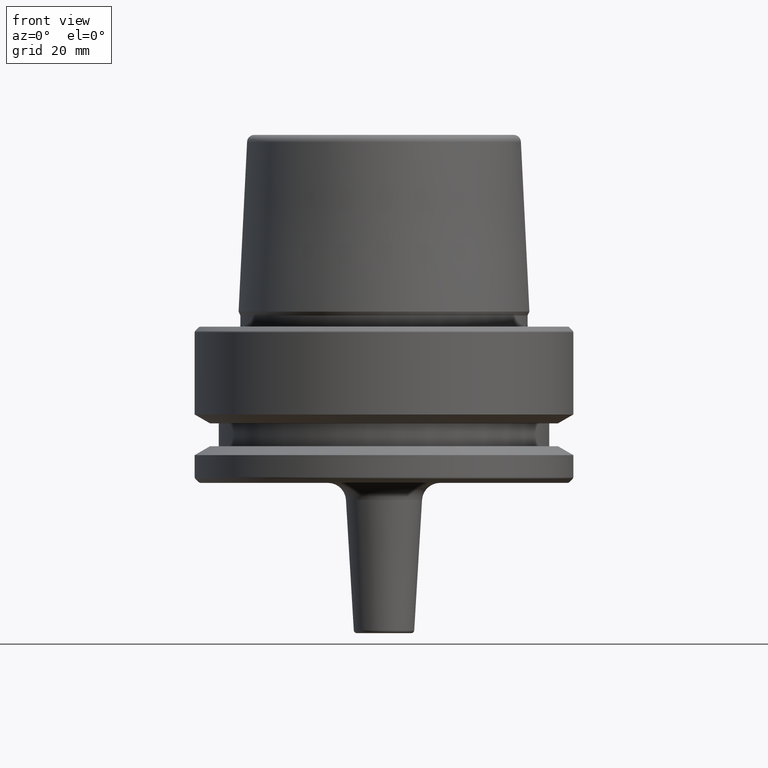
[diagram: clean part render]
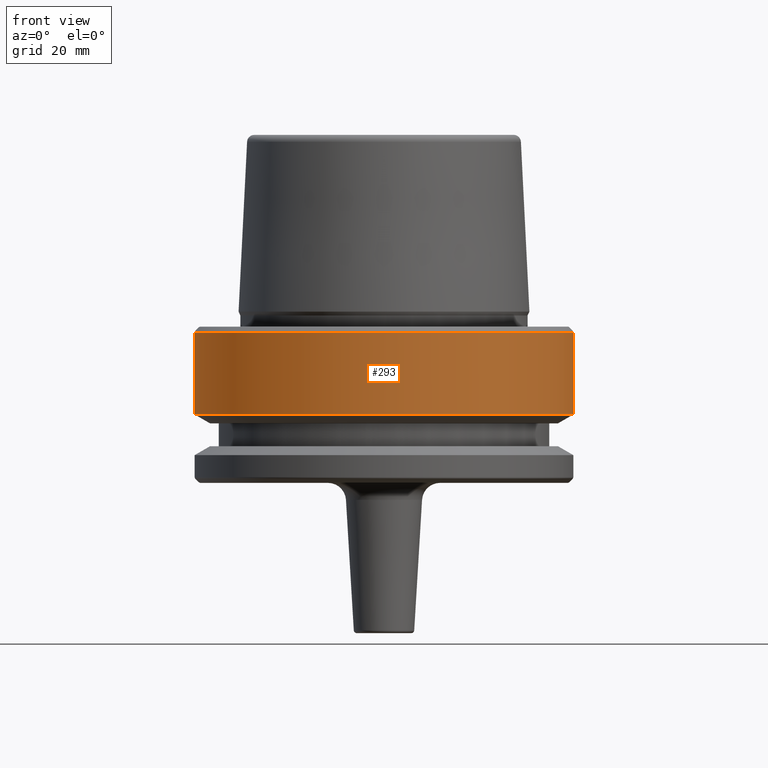
[diagram: same view with one face highlighted and labeled with its STEP entity id]
A machine part, front view. The second image highlights one B-rep face of the part: STEP entity #293.
In plain terms, the highlighted cylindrical surface (partial cylindrical patch) has radius 31.5 mm, axis along (-0, -0, 1).
Its self-contained STEP definition (entity closure, byte-faithful):
#29 = ORIENTED_EDGE ( 'NONE', *, *, #606, .F. ) ;
#144 = VERTEX_POINT ( 'NONE', #812 ) ;
#196 = DIRECTION ( 'NONE',  ( 1.000000000000000000, 0.0000000000000000000, 0.0000000000000000000 ) ) ;
#200 = VECTOR ( 'NONE', #260, 1000.000000000000000 ) ;
#202 = ORIENTED_EDGE ( 'NONE', *, *, #990, .F. ) ;
#260 = DIRECTION ( 'NONE',  ( -0.0000000000000000000, -0.0000000000000000000, 1.000000000000000000 ) ) ;
#293 = ADVANCED_FACE ( 'NONE', ( #548 ), #486, .T. ) ;
#312 = DIRECTION ( 'NONE',  ( -0.0000000000000000000, -0.0000000000000000000, 1.000000000000000000 ) ) ;
#323 = EDGE_CURVE ( 'NONE', #144, #427, #636, .T. ) ;
#348 = EDGE_LOOP ( 'NONE', ( #29, #1246, #953, #202 ) ) ;
#417 = EDGE_CURVE ( 'NONE', #427, #849, #1217, .T. ) ;
#421 = CARTESIAN_POINT ( 'NONE',  ( 0.0000000000000000000, 0.0000000000000000000, -14.62250092524070100 ) ) ;
#427 = VERTEX_POINT ( 'NONE', #1240 ) ;
#486 = CYLINDRICAL_SURFACE ( 'NONE', #1063, 31.50000000000000000 ) ;
#515 = CARTESIAN_POINT ( 'NONE',  ( 0.0000000000000000000, 0.0000000000000000000, 78.96908074195309300 ) ) ;
#530 = AXIS2_PLACEMENT_3D ( 'NONE', #421, #804, #196 ) ;
#548 = FACE_OUTER_BOUND ( 'NONE', #348, .T. ) ;
#564 = CARTESIAN_POINT ( 'NONE',  ( 0.0000000000000000000, 0.0000000000000000000, -0.9656854249492363700 ) ) ;
#578 = CARTESIAN_POINT ( 'NONE',  ( 31.50000000000000000, 0.0000000000000000000, 78.96908074195309300 ) ) ;
#606 = EDGE_CURVE ( 'NONE', #144, #815, #894, .T. ) ;
#615 = AXIS2_PLACEMENT_3D ( 'NONE', #564, #1230, #656 ) ;
#616 = DIRECTION ( 'NONE',  ( 1.000000000000000000, 0.0000000000000000000, 0.0000000000000000000 ) ) ;
#636 = CIRCLE ( 'NONE', #530, 31.50000000000000000 ) ;
#656 = DIRECTION ( 'NONE',  ( 1.000000000000000000, 0.0000000000000000000, 0.0000000000000000000 ) ) ;
#718 = CARTESIAN_POINT ( 'NONE',  ( 31.50000000000000700, 0.0000000000000000000, -0.9656854249492363700 ) ) ;
#768 = CIRCLE ( 'NONE', #615, 31.50000000000000700 ) ;
#804 = DIRECTION ( 'NONE',  ( -0.0000000000000000000, -0.0000000000000000000, 1.000000000000000000 ) ) ;
#812 = CARTESIAN_POINT ( 'NONE',  ( -31.50000000000000000, 3.857637417314162700E-015, -14.62250092524070100 ) ) ;
#815 = VERTEX_POINT ( 'NONE', #818 ) ;
#818 = CARTESIAN_POINT ( 'NONE',  ( -31.50000000000000700, 3.857637417314163500E-015, -0.9656854249492363700 ) ) ;
#849 = VERTEX_POINT ( 'NONE', #718 ) ;
#894 = LINE ( 'NONE', #910, #1158 ) ;
#910 = CARTESIAN_POINT ( 'NONE',  ( -31.50000000000000000, 3.857637417314162700E-015, 78.96908074195309300 ) ) ;
#953 = ORIENTED_EDGE ( 'NONE', *, *, #417, .T. ) ;
#990 = EDGE_CURVE ( 'NONE', #815, #849, #768, .T. ) ;
#1063 = AXIS2_PLACEMENT_3D ( 'NONE', #515, #1102, #616 ) ;
#1102 = DIRECTION ( 'NONE',  ( -0.0000000000000000000, -0.0000000000000000000, 1.000000000000000000 ) ) ;
#1158 = VECTOR ( 'NONE', #312, 1000.000000000000000 ) ;
#1217 = LINE ( 'NONE', #578, #200 ) ;
#1230 = DIRECTION ( 'NONE',  ( -0.0000000000000000000, -0.0000000000000000000, 1.000000000000000000 ) ) ;
#1240 = CARTESIAN_POINT ( 'NONE',  ( 31.50000000000000000, 0.0000000000000000000, -14.62250092524070100 ) ) ;
#1246 = ORIENTED_EDGE ( 'NONE', *, *, #323, .T. ) ;